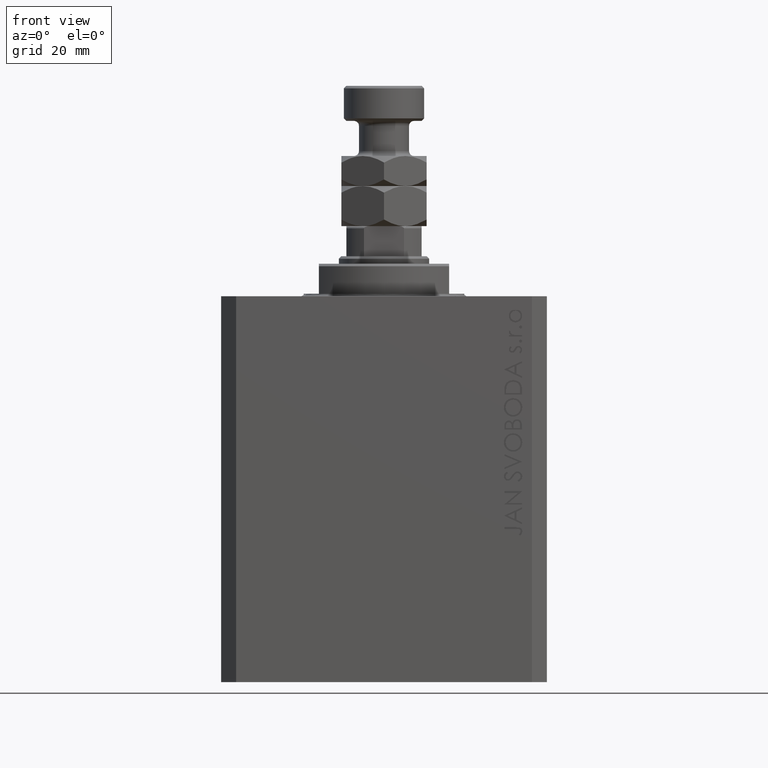
[diagram: clean part render]
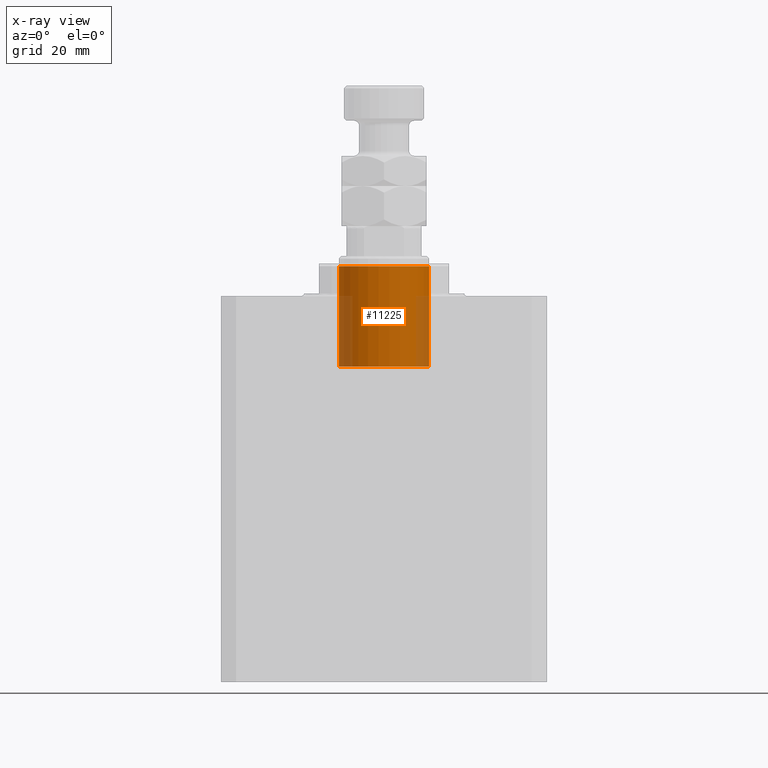
[diagram: x-ray — body ghosted, one internal face saturated and labeled with its STEP entity id]
A machine part, front view, then the same camera in x-ray: the body is ghosted and one INTERNAL B-rep face — a face not visible from any outside direction — is saturated and labeled: STEP entity #11225.
In plain terms, the highlighted cylindrical surface (partial cylindrical patch) has radius 9 mm, axis along (0, -0, 1).
Its self-contained STEP definition (entity closure, byte-faithful):
#1001 = CARTESIAN_POINT ( 'NONE',  ( 0.000000000000000000, 0.000000000000000000, -5.999999999999987566 ) ) ;
#1358 = CARTESIAN_POINT ( 'NONE',  ( 9.000000000000000000, 1.102182119232617714E-15, 14.00000000000000178 ) ) ;
#2664 = LINE ( 'NONE', #45125, #9364 ) ;
#3749 = CIRCLE ( 'NONE', #26750, 9.000000000000000000 ) ;
#6528 = ORIENTED_EDGE ( 'NONE', *, *, #13383, .T. ) ;
#6698 = VERTEX_POINT ( 'NONE', #41094 ) ;
#6969 = EDGE_CURVE ( 'NONE', #30107, #6698, #21893, .T. ) ;
#9069 = AXIS2_PLACEMENT_3D ( 'NONE', #1001, #20090, #12657 ) ;
#9364 = VECTOR ( 'NONE', #29230, 1000.000000000000000 ) ;
#9386 = DIRECTION ( 'NONE',  ( -1.000000000000000000, 0.000000000000000000, 0.000000000000000000 ) ) ;
#11225 = ADVANCED_FACE ( 'NONE', ( #31500 ), #31017, .F. ) ;
#12657 = DIRECTION ( 'NONE',  ( -1.000000000000000000, 0.000000000000000000, 0.000000000000000000 ) ) ;
#13383 = EDGE_CURVE ( 'NONE', #26196, #43545, #2664, .T. ) ;
#16381 = VECTOR ( 'NONE', #37054, 1000.000000000000000 ) ;
#16869 = CARTESIAN_POINT ( 'NONE',  ( -9.000000000000000000, 0.000000000000000000, 14.00000000000000178 ) ) ;
#20090 = DIRECTION ( 'NONE',  ( 0.000000000000000000, 0.000000000000000000, -1.000000000000000000 ) ) ;
#21893 = LINE ( 'NONE', #43784, #16381 ) ;
#23364 = CIRCLE ( 'NONE', #9069, 9.000000000000000000 ) ;
#23455 = CARTESIAN_POINT ( 'NONE',  ( 9.000000000000000000, 1.102182119232617714E-15, -5.999999999999987566 ) ) ;
#23555 = CARTESIAN_POINT ( 'NONE',  ( 0.000000000000000000, 0.000000000000000000, 14.00000000000000178 ) ) ;
#26196 = VERTEX_POINT ( 'NONE', #1358 ) ;
#26750 = AXIS2_PLACEMENT_3D ( 'NONE', #33966, #37198, #40930 ) ;
#29230 = DIRECTION ( 'NONE',  ( -0.000000000000000000, -0.000000000000000000, -1.000000000000000000 ) ) ;
#29882 = AXIS2_PLACEMENT_3D ( 'NONE', #23555, #42932, #9386 ) ;
#30107 = VERTEX_POINT ( 'NONE', #16869 ) ;
#31017 = CYLINDRICAL_SURFACE ( 'NONE', #29882, 9.000000000000000000 ) ;
#31500 = FACE_OUTER_BOUND ( 'NONE', #38425, .T. ) ;
#32880 = EDGE_CURVE ( 'NONE', #43545, #6698, #23364, .T. ) ;
#33112 = ORIENTED_EDGE ( 'NONE', *, *, #6969, .F. ) ;
#33966 = CARTESIAN_POINT ( 'NONE',  ( 0.000000000000000000, 0.000000000000000000, 14.00000000000000178 ) ) ;
#36106 = ORIENTED_EDGE ( 'NONE', *, *, #44302, .F. ) ;
#37054 = DIRECTION ( 'NONE',  ( -0.000000000000000000, -0.000000000000000000, -1.000000000000000000 ) ) ;
#37198 = DIRECTION ( 'NONE',  ( 0.000000000000000000, 0.000000000000000000, -1.000000000000000000 ) ) ;
#38425 = EDGE_LOOP ( 'NONE', ( #36106, #6528, #44417, #33112 ) ) ;
#40930 = DIRECTION ( 'NONE',  ( -1.000000000000000000, 0.000000000000000000, 0.000000000000000000 ) ) ;
#41094 = CARTESIAN_POINT ( 'NONE',  ( -9.000000000000000000, 0.000000000000000000, -5.999999999999987566 ) ) ;
#42932 = DIRECTION ( 'NONE',  ( -0.000000000000000000, -0.000000000000000000, -1.000000000000000000 ) ) ;
#43545 = VERTEX_POINT ( 'NONE', #23455 ) ;
#43784 = CARTESIAN_POINT ( 'NONE',  ( -9.000000000000000000, 0.000000000000000000, 14.00000000000000178 ) ) ;
#44302 = EDGE_CURVE ( 'NONE', #26196, #30107, #3749, .T. ) ;
#44417 = ORIENTED_EDGE ( 'NONE', *, *, #32880, .T. ) ;
#45125 = CARTESIAN_POINT ( 'NONE',  ( 9.000000000000000000, 1.102182119232617714E-15, 14.00000000000000178 ) ) ;